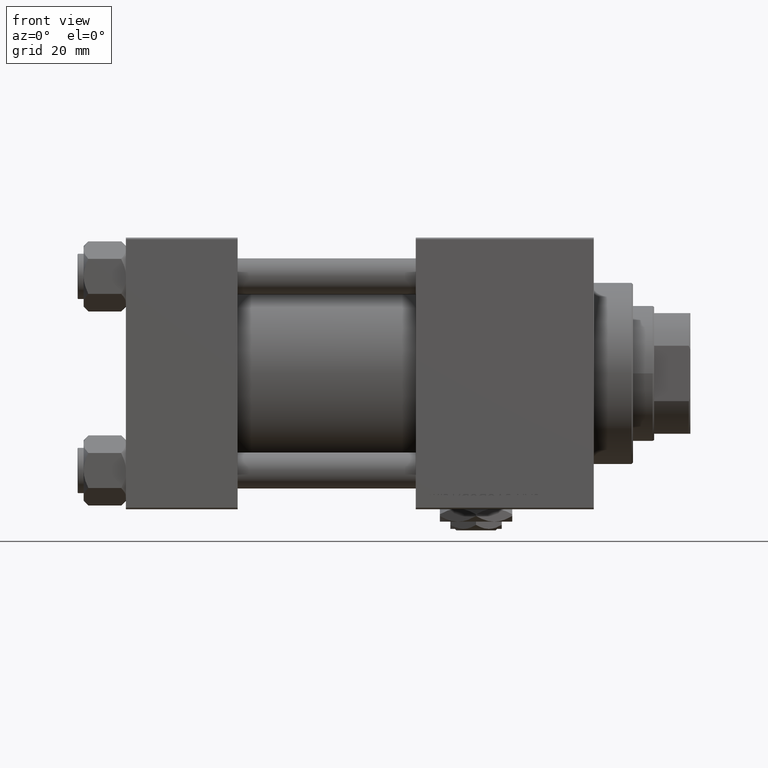
[diagram: clean part render]
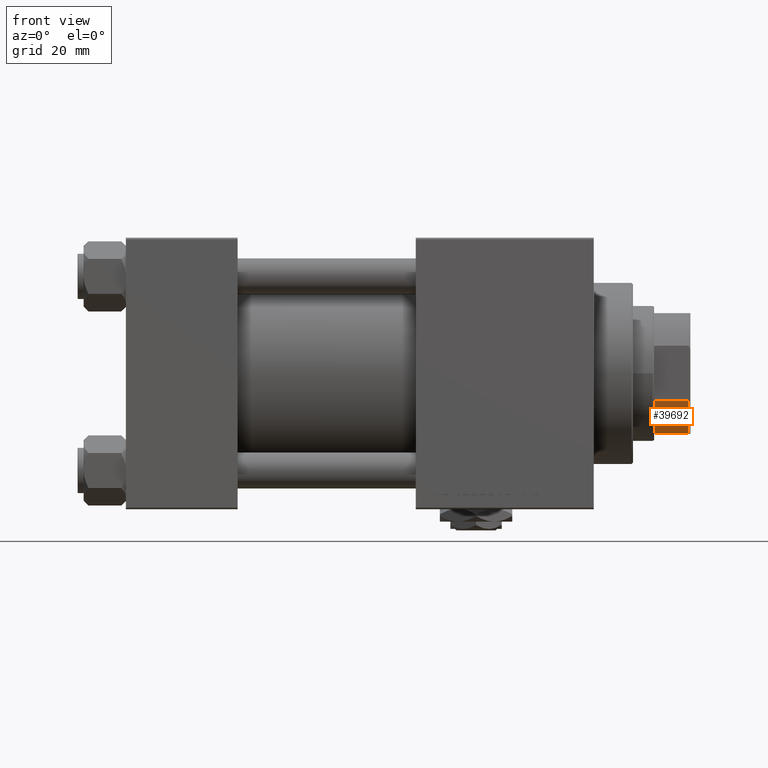
[diagram: same view with one face highlighted and labeled with its STEP entity id]
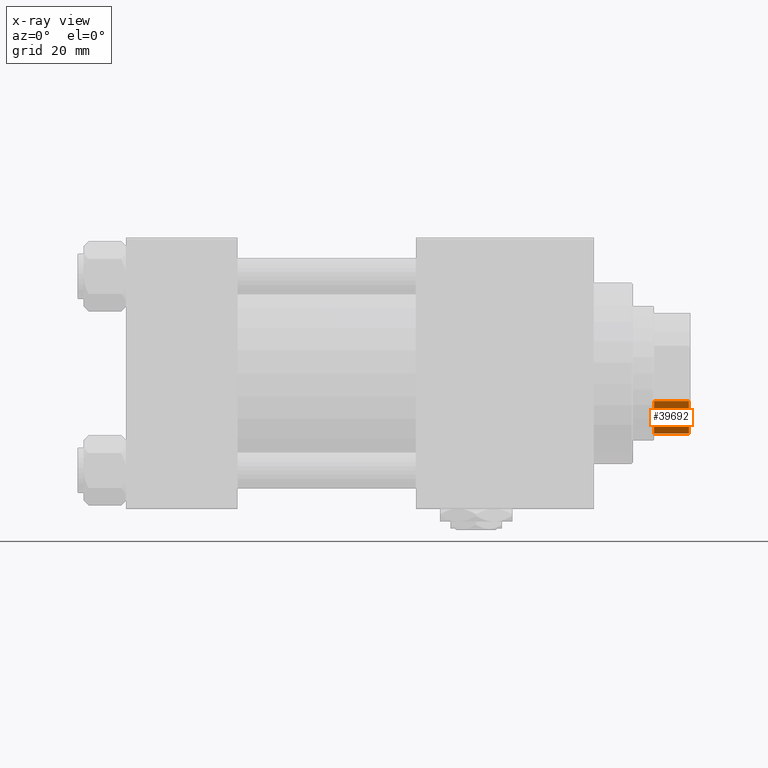
[diagram: x-ray of the same camera — body ghosted, the highlighted face saturated]
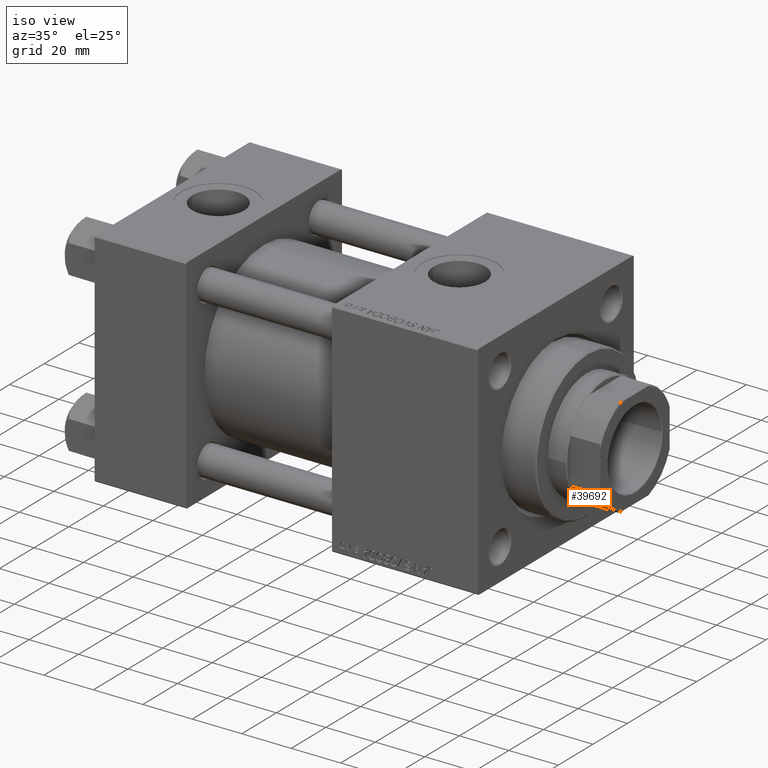
[diagram: same view with one face highlighted and labeled with its STEP entity id]
A machine part, front view. The second image highlights one B-rep face of the part: STEP entity #39692.
The next image is the same camera in x-ray: the body ghosted, the highlighted face saturated — about 0% of this face is hidden behind the body in this view.
A second angle (iso view) of the same face is appended — the face is thin or edge-on in the first view.
In plain terms, the highlighted cylindrical surface (partial cylindrical patch) has radius 22 mm, axis along (1, 0, 0).
Its self-contained STEP definition (entity closure, byte-faithful):
#3377 = DIRECTION ( 'NONE',  ( 1.000000000000000000, 0.000000000000000000, 0.000000000000000000 ) ) ;
#4262 = LINE ( 'NONE', #15812, #51404 ) ;
#5280 = CARTESIAN_POINT ( 'NONE',  ( 19.99999999999999645, 9.165151389911683211, 149.5000000000000568 ) ) ;
#5716 = AXIS2_PLACEMENT_3D ( 'NONE', #43337, #15021, #19484 ) ;
#7193 = AXIS2_PLACEMENT_3D ( 'NONE', #43234, #27252, #3377 ) ;
#8427 = VERTEX_POINT ( 'NONE', #28790 ) ;
#9494 = CARTESIAN_POINT ( 'NONE',  ( 9.165151389911676105, 20.00000000000000000, 149.5000000000000568 ) ) ;
#11254 = FACE_OUTER_BOUND ( 'NONE', #21639, .T. ) ;
#11282 = EDGE_CURVE ( 'NONE', #12259, #50775, #14096, .T. ) ;
#12259 = VERTEX_POINT ( 'NONE', #9494 ) ;
#14096 = CIRCLE ( 'NONE', #37519, 22.00000000000000000 ) ;
#15021 = DIRECTION ( 'NONE',  ( 0.000000000000000000, 0.000000000000000000, 1.000000000000000000 ) ) ;
#15812 = CARTESIAN_POINT ( 'NONE',  ( 9.165151389911676105, 20.00000000000000000, -0.001000000000001000089 ) ) ;
#16496 = ORIENTED_EDGE ( 'NONE', *, *, #11282, .T. ) ;
#16525 = CARTESIAN_POINT ( 'NONE',  ( 0.000000000000000000, 0.000000000000000000, 149.5000000000000568 ) ) ;
#17475 = VECTOR ( 'NONE', #25990, 1000.000000000000000 ) ;
#19484 = DIRECTION ( 'NONE',  ( 1.000000000000000000, 0.000000000000000000, 0.000000000000000000 ) ) ;
#21537 = LINE ( 'NONE', #29419, #17475 ) ;
#21639 = EDGE_LOOP ( 'NONE', ( #29507, #16496, #39145, #24046 ) ) ;
#24046 = ORIENTED_EDGE ( 'NONE', *, *, #50006, .T. ) ;
#24395 = DIRECTION ( 'NONE',  ( -0.000000000000000000, -0.000000000000000000, -1.000000000000000000 ) ) ;
#25990 = DIRECTION ( 'NONE',  ( -0.000000000000000000, -0.000000000000000000, 1.000000000000000000 ) ) ;
#27252 = DIRECTION ( 'NONE',  ( -0.000000000000000000, -0.000000000000000000, 1.000000000000000000 ) ) ;
#28790 = CARTESIAN_POINT ( 'NONE',  ( 9.165151389911676105, 20.00000000000000000, 138.0000000000000568 ) ) ;
#29419 = CARTESIAN_POINT ( 'NONE',  ( 19.99999999999999645, 9.165151389911683211, -0.001000000000001000089 ) ) ;
#29456 = EDGE_CURVE ( 'NONE', #8427, #12259, #4262, .T. ) ;
#29507 = ORIENTED_EDGE ( 'NONE', *, *, #29456, .T. ) ;
#35604 = CARTESIAN_POINT ( 'NONE',  ( 19.99999999999999645, 9.165151389911683211, 138.0000000000000568 ) ) ;
#37519 = AXIS2_PLACEMENT_3D ( 'NONE', #16525, #24395, #40640 ) ;
#39145 = ORIENTED_EDGE ( 'NONE', *, *, #50145, .F. ) ;
#39692 = ADVANCED_FACE ( 'NONE', ( #11254 ), #41487, .T. ) ;
#40640 = DIRECTION ( 'NONE',  ( 1.000000000000000000, 0.000000000000000000, 0.000000000000000000 ) ) ;
#41487 = CYLINDRICAL_SURFACE ( 'NONE', #7193, 22.00000000000000000 ) ;
#43234 = CARTESIAN_POINT ( 'NONE',  ( 0.000000000000000000, 0.000000000000000000, -0.001000000000001000089 ) ) ;
#43337 = CARTESIAN_POINT ( 'NONE',  ( 0.000000000000000000, 0.000000000000000000, 138.0000000000000000 ) ) ;
#47529 = DIRECTION ( 'NONE',  ( -0.000000000000000000, -0.000000000000000000, 1.000000000000000000 ) ) ;
#49284 = CIRCLE ( 'NONE', #5716, 22.00000000000004619 ) ;
#50006 = EDGE_CURVE ( 'NONE', #51337, #8427, #49284, .T. ) ;
#50145 = EDGE_CURVE ( 'NONE', #51337, #50775, #21537, .T. ) ;
#50775 = VERTEX_POINT ( 'NONE', #5280 ) ;
#51337 = VERTEX_POINT ( 'NONE', #35604 ) ;
#51404 = VECTOR ( 'NONE', #47529, 1000.000000000000000 ) ;